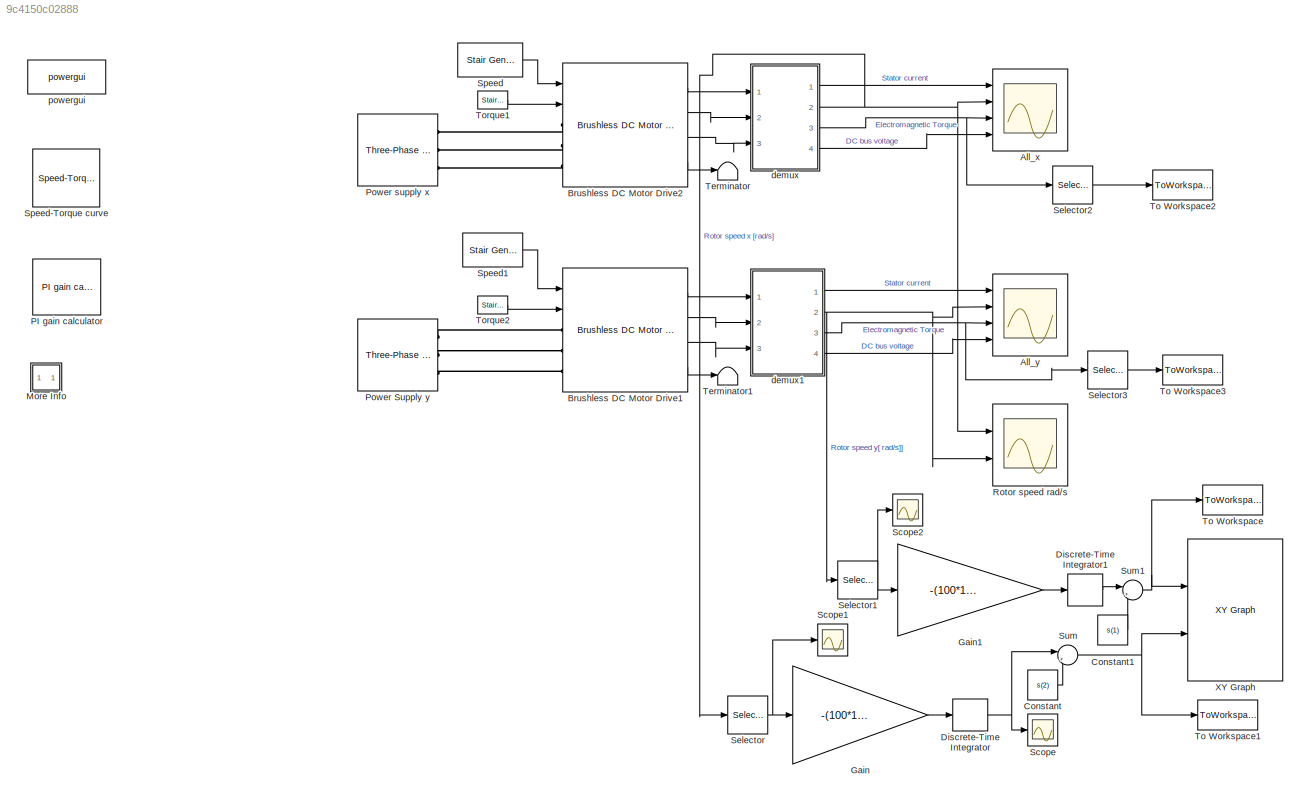
MODEL slx_9c4150c02888
KIND model
CONFIG AbsTol = auto
CONFIG EnableMultiTasking = on
CONFIG FixedStep = auto
CONFIG MaxStep = auto
CONFIG MinStep = auto
CONFIG PreLoadFcn = Ts=2e-6;
CONFIG RelTol = 1e-3
CONFIG SampleTimeConstraint = Unconstrained
CONFIG Solver = FixedStepDiscrete
CONFIG SolverName = FixedStepDiscrete
CONFIG StartTime = 0.0
CONFIG StopTime = t_l+0.5
BLOCK [Scope] All_x
  Floating = off
  NumInputPorts = 4
  Ports = [4]
  ScopeSpecificationString = Simulink.scopes.TimeScopeBlockCfg('CurrentConfiguration', extmgr.ConfigurationSet(extmgr.Configuration('Core','General UI',true),extmgr.Configuration('Core','Source UI',true),extmgr.Configuration('Sources','WiredSimulink',true,'DataLoggingSaveFormat','Array','DataLoggingDecimation','1','DataLoggingDecimateData',true),extmgr.Configuration('Visuals','Time Domain',true,'SerializedDisplays',{struct('M...<+3721ch>
BLOCK [Scope] All_y
  Floating = off
  NumInputPorts = 4
  Ports = [4]
  ScopeSpecificationString = Simulink.scopes.TimeScopeBlockCfg('CurrentConfiguration', extmgr.ConfigurationSet(extmgr.Configuration('Core','General UI',true),extmgr.Configuration('Core','Source UI',true),extmgr.Configuration('Sources','WiredSimulink',true,'DataLoggingSaveFormat','Array','DataLoggingDecimation','1','DataLoggingDecimateData',true,'DataLoggingVariableName','ScopeData1'),extmgr.Configuration('Visuals','Time Domai...<+3782ch>
BLOCK [Reference] Brushless DC Motor Drive1  REF=electricdrivelib/AC drives/Brushless DC Motor Drive
  Ports = [2, 4, 0, 0, 0, 3]
  SourceBlock = electricdrivelib/AC drives/Brushless DC Motor Drive
  SourceProductBaseCode = PS
  SourceProductName = Simscape Power Systems
  SourceType = Brushless DC Motor Drive
BLOCK [Reference] Brushless DC Motor Drive2  REF=electricdrivelib/AC drives/Brushless DC Motor Drive
  Ports = [2, 4, 0, 0, 0, 3]
  SourceBlock = electricdrivelib/AC drives/Brushless DC Motor Drive
  SourceProductBaseCode = PS
  SourceProductName = Simscape Power Systems
  SourceType = Brushless DC Motor Drive
BLOCK [Constant] Constant
  Value = s(2)
BLOCK [Constant] Constant1
  Value = s(1)
BLOCK [DiscreteIntegrator] Discrete-Time Integrator
  ICPrevOutput = DiscIntNeverNeededParam
  ICPrevScaledInput = DiscIntNeverNeededParam
  InitialConditionSetting = Auto
  Ports = [1, 1]
  SampleTime = 1/60
BLOCK [DiscreteIntegrator] Discrete-Time Integrator1
  ICPrevOutput = DiscIntNeverNeededParam
  ICPrevScaledInput = DiscIntNeverNeededParam
  InitialConditionSetting = Auto
  Ports = [1, 1]
  SampleTime = 1/60
BLOCK [Gain] Gain
  Gain = -(100*10*r1*2*pi)/(60*4.29)
  OutDataTypeStr = Inherit: Inherit via internal rule
  ParamDataTypeStr = Inherit: Inherit via internal rule
  SaturateOnIntegerOverflow = off
BLOCK [Gain] Gain1
  Gain = -(100*10*r2*2*pi)/(60*4.29)
  OutDataTypeStr = Inherit: Inherit via internal rule
  ParamDataTypeStr = Inherit: Inherit via internal rule
  SaturateOnIntegerOverflow = off
BLOCK [SubSystem] More Info
  OpenFcn = showdemo(bdroot(gcb))
  Ports = []
  RequestExecContextInheritance = off
BLOCK [Reference] PI gain calculator  REF=AC7DriveInternalModels/PI gain calculator
  Ports = []
  SourceBlock = AC7DriveInternalModels/PI gain calculator
  SourceType = Speed regulator gain calculator
BLOCK [Reference] Power Supply y  REF=powerlib/Electrical
Sources/Three-Phase Source
  Ports = [0, 0, 0, 0, 0, 1, 3]
  SourceBlock = powerlib/Electrical\nSources/Three-Phase Source
  SourceProductBaseCode = PS
  SourceProductName = Simscape Power Systems
  SourceType = Three-Phase Source
BLOCK [Reference] Power supply x  REF=powerlib/Electrical
Sources/Three-Phase Source
  Ports = [0, 0, 0, 0, 0, 1, 3]
  SourceBlock = powerlib/Electrical\nSources/Three-Phase Source
  SourceProductBaseCode = PS
  SourceProductName = Simscape Power Systems
  SourceType = Three-Phase Source
BLOCK [Scope] Rotor speed rad//s
  Floating = off
  NumInputPorts = 2
  Ports = [2]
  ScopeSpecificationString = Simulink.scopes.TimeScopeBlockCfg('CurrentConfiguration', extmgr.ConfigurationSet(extmgr.Configuration('Core','General UI',true),extmgr.Configuration('Core','Source UI',true),extmgr.Configuration('Sources','WiredSimulink',true,'DataLoggingSaveFormat','Array','DataLoggingDecimation','1','DataLoggingDecimateData',true,'DataLoggingVariableName','ScopeData1'),extmgr.Configuration('Visuals','Time Domai...<+2310ch>
BLOCK [Scope] Scope
  Floating = off
  NumInputPorts = 1
  Ports = [1]
  ScopeSpecificationString = Simulink.scopes.TimeScopeBlockCfg('CurrentConfiguration', extmgr.ConfigurationSet(extmgr.Configuration('Core','General UI',true),extmgr.Configuration('Core','Source UI',true),extmgr.Configuration('Sources','WiredSimulink',true,'DataLoggingVariableName','ScopeData3'),extmgr.Configuration('Visuals','Time Domain',true,'SerializedDisplays',{struct('MinYLimReal','-10.62512','MaxYLimReal','1.18057','YLa...<+1417ch>
BLOCK [Scope] Scope1
  Floating = off
  NumInputPorts = 1
  Ports = [1]
  ScopeSpecificationString = Simulink.scopes.TimeScopeBlockCfg('CurrentConfiguration', extmgr.ConfigurationSet(extmgr.Configuration('Core','General UI',true),extmgr.Configuration('Core','Source UI',true),extmgr.Configuration('Sources','WiredSimulink',true,'DataLoggingVariableName','ScopeData2'),extmgr.Configuration('Visuals','Time Domain',true,'SerializedDisplays',{struct('MinYLimReal','-9.94954','MaxYLimReal','63.38481','YLa...<+1400ch>
BLOCK [Scope] Scope2
  Floating = off
  NumInputPorts = 1
  Ports = [1]
  ScopeSpecificationString = Simulink.scopes.TimeScopeBlockCfg('CurrentConfiguration', extmgr.ConfigurationSet(extmgr.Configuration('Core','General UI',true),extmgr.Configuration('Core','Source UI',true),extmgr.Configuration('Sources','WiredSimulink',true,'DataLoggingVariableName','ScopeData1'),extmgr.Configuration('Visuals','Time Domain',true,'SerializedDisplays',{struct('MinYLimReal','-81.69188','MaxYLimReal','11.77399','YL...<+1403ch>
BLOCK [Selector] Selector
  IndexOptions = Index vector (dialog),Index vector (dialog)
  Indices = [1],1
  InputPortWidth = 3
  NumberOfDimensions = 2
  OutputSizes = 1,1
  Ports = [1, 1]
BLOCK [Selector] Selector1
  IndexOptions = Index vector (dialog),Index vector (dialog)
  Indices = [1],1
  InputPortWidth = 3
  NumberOfDimensions = 2
  OutputSizes = 1,1
  Ports = [1, 1]
BLOCK [Selector] Selector2
  IndexOptions = Index vector (dialog),Index vector (dialog)
  Indices = [2],1
  InputPortWidth = 3
  NumberOfDimensions = 2
  OutputSizes = 1,1
  Ports = [1, 1]
BLOCK [Selector] Selector3
  IndexOptions = Index vector (dialog),Select all
  Indices = 2,1
  InputPortWidth = 2
  NumberOfDimensions = 2
  OutputSizes = 1,1
  Ports = [1, 1]
BLOCK [Reference] Speed  REF=powerlib_meascontrol/Pulse & Signal
Generators/Stair
Generator
  Ports = [0, 1]
  SourceBlock = powerlib_meascontrol/Pulse & Signal\nGenerators/Stair\nGenerator
  SourceProductBaseCode = PS
  SourceProductName = Simscape Power Systems
  SourceType = Stair Generator
BLOCK [Reference] Speed-Torque curve  REF=AC7DriveInternalModels/Speed-Torque curve
  Ports = []
  SourceBlock = AC7DriveInternalModels/Speed-Torque curve
  SourceType = Torque vs speed curve
BLOCK [Reference] Speed1  REF=powerlib_meascontrol/Pulse & Signal
Generators/Stair
Generator
  Ports = [0, 1]
  SourceBlock = powerlib_meascontrol/Pulse & Signal\nGenerators/Stair\nGenerator
  SourceProductBaseCode = PS
  SourceProductName = Simscape Power Systems
  SourceType = Stair Generator
BLOCK [Sum] Sum
  IconShape = round
  InputSameDT = off
  Inputs = |++
  OutDataTypeStr = Inherit: Inherit via internal rule
  Ports = [2, 1]
  SaturateOnIntegerOverflow = off
BLOCK [Sum] Sum1
  IconShape = round
  InputSameDT = off
  Inputs = |++
  OutDataTypeStr = Inherit: Inherit via internal rule
  Ports = [2, 1]
  SaturateOnIntegerOverflow = off
BLOCK [Terminator] Terminator
BLOCK [Terminator] Terminator1
BLOCK [ToWorkspace] To Workspace
  FixptAsFi = on
  MaxDataPoints = inf
  Ports = [1]
  SampleTime = -1
  Save2DSignal = 2-D array (concatenate along first dimension)
  VariableName = x
BLOCK [ToWorkspace] To Workspace1
  FixptAsFi = on
  MaxDataPoints = inf
  Ports = [1]
  SampleTime = -1
  Save2DSignal = 2-D array (concatenate along first dimension)
  VariableName = y
BLOCK [ToWorkspace] To Workspace2
  FixptAsFi = on
  MaxDataPoints = inf
  Ports = [1]
  SampleTime = -1
  Save2DSignal = 2-D array (concatenate along first dimension)
  SaveFormat = Structure With Time
  VariableName = torque_x
BLOCK [ToWorkspace] To Workspace3
  FixptAsFi = on
  MaxDataPoints = inf
  Ports = [1]
  SampleTime = -1
  Save2DSignal = 2-D array (concatenate along first dimension)
  SaveFormat = Structure With Time
  VariableName = torque_y
BLOCK [Reference] Torque1  REF=powerlib_meascontrol/Pulse & Signal
Generators/Stair
Generator
  Ports = [0, 1]
  SourceBlock = powerlib_meascontrol/Pulse & Signal\nGenerators/Stair\nGenerator
  SourceProductBaseCode = PS
  SourceProductName = Simscape Power Systems
  SourceType = Stair Generator
BLOCK [Reference] Torque2  REF=powerlib_meascontrol/Pulse & Signal
Generators/Stair
Generator
  Ports = [0, 1]
  SourceBlock = powerlib_meascontrol/Pulse & Signal\nGenerators/Stair\nGenerator
  SourceProductBaseCode = PS
  SourceProductName = Simscape Power Systems
  SourceType = Stair Generator
BLOCK [Reference] XY Graph  REF=simulink/Sinks/XY Graph
  Ports = [2]
  SourceBlock = simulink/Sinks/XY Graph
  SourceProductBaseCode = SL
  SourceProductName = Simulink
  SourceType = XY scope.
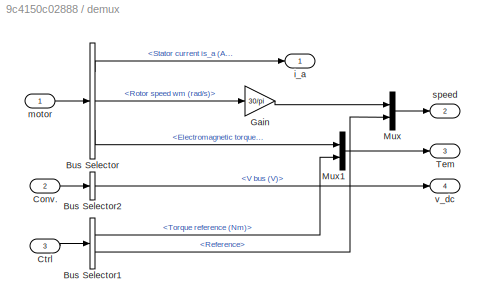
BLOCK [SubSystem] demux
  Ports = [3, 4]
  RequestExecContextInheritance = off
BLOCK [BusSelector] demux/Bus Selector
  OutputAsBus = off
  OutputSignals = Stator current is_a (A),Rotor speed wm (rad/s),Electromagnetic torque Te (N*m)
  Ports = [1, 3]
BLOCK [BusSelector] demux/Bus Selector1
  OutputAsBus = off
  OutputSignals = Torque reference (Nm),Reference
  Ports = [1, 2]
BLOCK [BusSelector] demux/Bus Selector2
  OutputAsBus = off
  OutputSignals = V bus (V)
  Ports = [1, 1]
BLOCK [Inport] demux/Conv.
  IconDisplay = Port number
  Port = 2
BLOCK [Inport] demux/Ctrl
  IconDisplay = Port number
  Port = 3
BLOCK [Gain] demux/Gain
  Gain = 30/pi
BLOCK [Mux] demux/Mux
  DisplayOption = bar
  Inputs = 2
  Ports = [2, 1]
BLOCK [Mux] demux/Mux1
  DisplayOption = bar
  Inputs = 2
  Ports = [2, 1]
BLOCK [Outport] demux/Tem
  IconDisplay = Port number
  Port = 3
BLOCK [Outport] demux/i_a
  IconDisplay = Port number
BLOCK [Inport] demux/motor
  IconDisplay = Port number
BLOCK [Outport] demux/speed
  IconDisplay = Port number
  Port = 2
BLOCK [Outport] demux/v_dc
  IconDisplay = Port number
  Port = 4
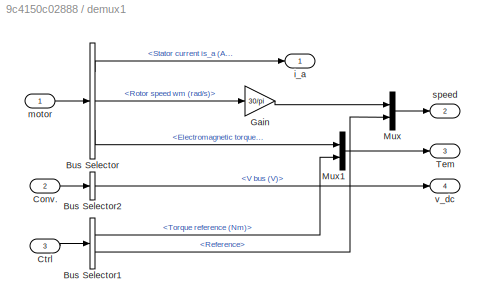
BLOCK [SubSystem] demux1
  Ports = [3, 4]
  RequestExecContextInheritance = off
BLOCK [BusSelector] demux1/Bus Selector
  OutputAsBus = off
  OutputSignals = Stator current is_a (A),Rotor speed wm (rad/s),Electromagnetic torque Te (N*m)
  Ports = [1, 3]
BLOCK [BusSelector] demux1/Bus Selector1
  OutputAsBus = off
  OutputSignals = Torque reference (Nm),Reference
  Ports = [1, 2]
BLOCK [BusSelector] demux1/Bus Selector2
  OutputAsBus = off
  OutputSignals = V bus (V)
  Ports = [1, 1]
BLOCK [Inport] demux1/Conv.
  IconDisplay = Port number
  Port = 2
BLOCK [Inport] demux1/Ctrl
  IconDisplay = Port number
  Port = 3
BLOCK [Gain] demux1/Gain
  Gain = 30/pi
BLOCK [Mux] demux1/Mux
  DisplayOption = bar
  Inputs = 2
  Ports = [2, 1]
BLOCK [Mux] demux1/Mux1
  DisplayOption = bar
  Inputs = 2
  Ports = [2, 1]
BLOCK [Outport] demux1/Tem
  IconDisplay = Port number
  Port = 3
BLOCK [Outport] demux1/i_a
  IconDisplay = Port number
BLOCK [Inport] demux1/motor
  IconDisplay = Port number
BLOCK [Outport] demux1/speed
  IconDisplay = Port number
  Port = 2
BLOCK [Outport] demux1/v_dc
  IconDisplay = Port number
  Port = 4
BLOCK [Reference] powergui  REF=powerlib/powergui
  Ports = []
  SourceBlock = powerlib/powergui
  SourceProductBaseCode = PS
  SourceProductName = Simscape Power Systems
  SourceType = PSB option menu block
LINE Brushless DC Motor Drive1:1 -> demux1:1
LINE Brushless DC Motor Drive1:2 -> demux1:2
LINE Brushless DC Motor Drive1:3 -> demux1:3
LINE Brushless DC Motor Drive1:4 -> Terminator1:1
LINE Brushless DC Motor Drive2:1 -> demux:1
LINE Brushless DC Motor Drive2:2 -> demux:2
LINE Brushless DC Motor Drive2:3 -> demux:3
LINE Brushless DC Motor Drive2:4 -> Terminator:1
LINE Constant1:1 -> Sum1:2
LINE Constant:1 -> Sum:2
LINE Discrete-Time Integrator1:1 -> Sum1:1
NET Discrete-Time Integrator:1 -> Scope:1, Sum:1
LINE Gain1:1 -> Discrete-Time Integrator1:1
LINE Gain:1 -> Discrete-Time Integrator:1
NET Selector1:1 -> Gain1:1, Scope2:1
LINE Selector2:1 -> To Workspace2:1
LINE Selector3:1 -> To Workspace3:1
NET Selector:1 -> Gain:1, Scope1:1
LINE Speed1:1 -> Brushless DC Motor Drive1:1
LINE Speed:1 -> Brushless DC Motor Drive2:1
NET Sum1:1 -> To Workspace:1, XY Graph:1
NET Sum:1 -> To Workspace1:1, XY Graph:2
LINE Torque1:1 -> Brushless DC Motor Drive2:2
LINE Torque2:1 -> Brushless DC Motor Drive1:2
LINE demux/Bus Selector1:1 -> demux/Mux1:2
LINE demux/Bus Selector1:2 -> demux/Mux:2
LINE demux/Bus Selector2:1 -> demux/v_dc:1
LINE demux/Bus Selector:1 -> demux/i_a:1
LINE demux/Bus Selector:2 -> demux/Gain:1
LINE demux/Bus Selector:3 -> demux/Mux1:1
LINE demux/Conv.:1 -> demux/Bus Selector2:1
LINE demux/Ctrl:1 -> demux/Bus Selector1:1
LINE demux/Gain:1 -> demux/Mux:1
LINE demux/Mux1:1 -> demux/Tem:1
LINE demux/Mux:1 -> demux/speed:1
LINE demux/motor:1 -> demux/Bus Selector:1
LINE demux1/Bus Selector1:1 -> demux1/Mux1:2
LINE demux1/Bus Selector1:2 -> demux1/Mux:2
LINE demux1/Bus Selector2:1 -> demux1/v_dc:1
LINE demux1/Bus Selector:1 -> demux1/i_a:1
LINE demux1/Bus Selector:2 -> demux1/Gain:1
LINE demux1/Bus Selector:3 -> demux1/Mux1:1
LINE demux1/Conv.:1 -> demux1/Bus Selector2:1
LINE demux1/Ctrl:1 -> demux1/Bus Selector1:1
LINE demux1/Gain:1 -> demux1/Mux:1
LINE demux1/Mux1:1 -> demux1/Tem:1
LINE demux1/Mux:1 -> demux1/speed:1
LINE demux1/motor:1 -> demux1/Bus Selector:1
LINE demux1:1 -> All_y:1
NET demux1:2 -> All_y:2, Rotor speed rad//s:2, Selector1:1
NET demux1:3 -> All_y:3, Selector3:1
LINE demux1:4 -> All_y:4
LINE demux:1 -> All_x:1
NET demux:2 -> All_x:2, Rotor speed rad//s:1, Selector:1
NET demux:3 -> All_x:3, Selector2:1
LINE demux:4 -> All_x:4
PLINE Brushless DC Motor Drive1:LConn1 -- Power Supply y:RConn1
PLINE Brushless DC Motor Drive1:LConn2 -- Power Supply y:RConn2
PLINE Brushless DC Motor Drive1:LConn3 -- Power Supply y:RConn3
PLINE Brushless DC Motor Drive2:LConn1 -- Power supply x:RConn1
PLINE Brushless DC Motor Drive2:LConn2 -- Power supply x:RConn2
PLINE Brushless DC Motor Drive2:LConn3 -- Power supply x:RConn3
note: NET lines group one-source signal fan-out (src -> all destinations, sorted); 1:1 wires keep LINE
